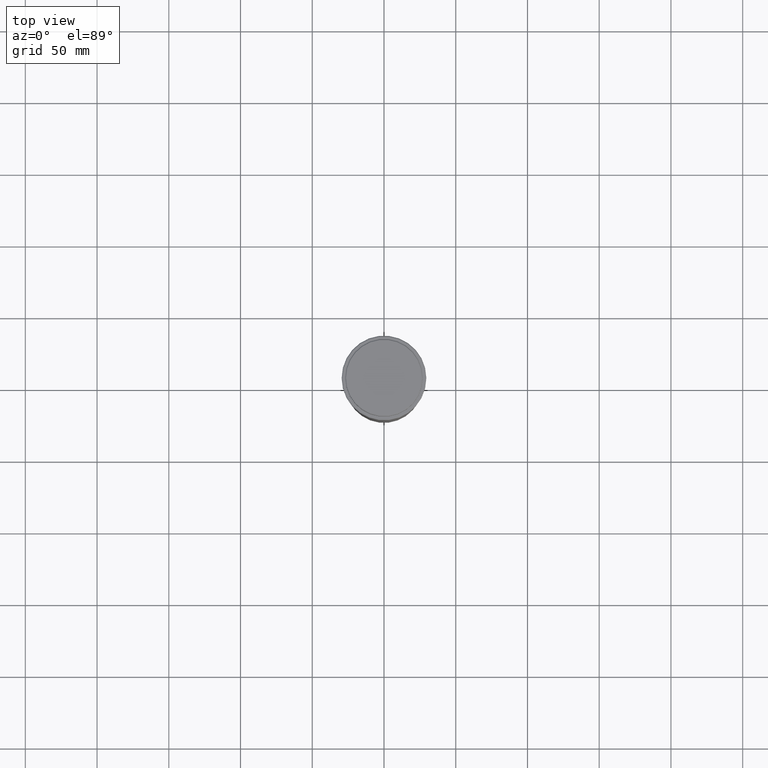
[diagram: clean part render]
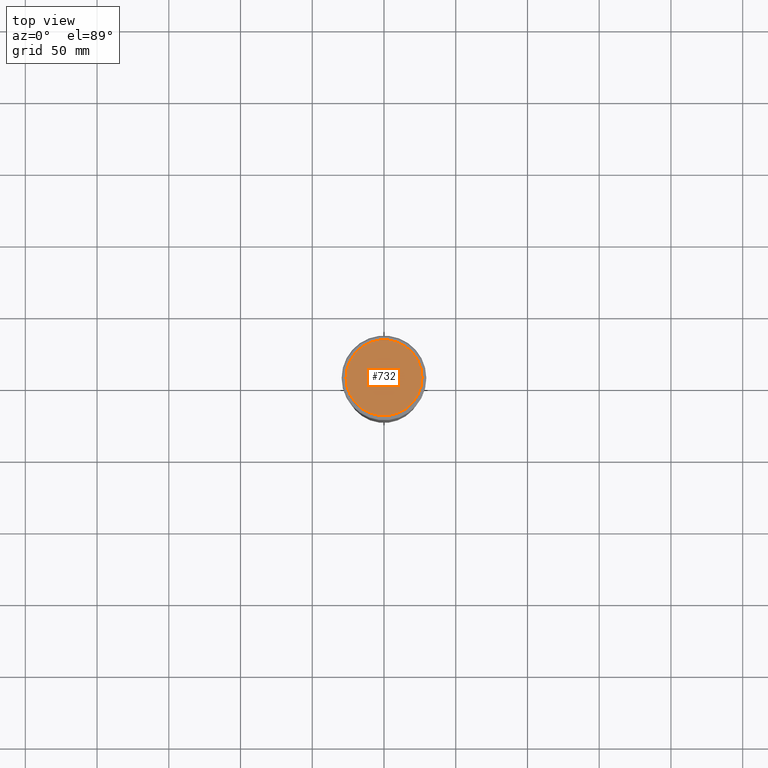
[diagram: same view with one face highlighted and labeled with its STEP entity id]
A machine part, top view. The second image highlights one B-rep face of the part: STEP entity #732.
In plain terms, the highlighted planar face has unit normal (0, -0, 1).
Its self-contained STEP definition (entity closure, byte-faithful):
#38 = EDGE_CURVE ( 'NONE', #976, #196, #653, .T. ) ;
#88 = ORIENTED_EDGE ( 'NONE', *, *, #790, .T. ) ;
#111 = CARTESIAN_POINT ( 'NONE',  ( 0.000000000000000000, 0.000000000000000000, 0.000000000000000000 ) ) ;
#136 = CARTESIAN_POINT ( 'NONE',  ( -26.50000000000002487, 0.000000000000000000, 0.000000000000000000 ) ) ;
#192 = AXIS2_PLACEMENT_3D ( 'NONE', #111, #1065, #728 ) ;
#196 = VERTEX_POINT ( 'NONE', #136 ) ;
#315 = DIRECTION ( 'NONE',  ( 1.000000000000000000, 0.000000000000000000, 0.000000000000000000 ) ) ;
#334 = PLANE ( 'NONE',  #192 ) ;
#372 = DIRECTION ( 'NONE',  ( -0.000000000000000000, -0.000000000000000000, 1.000000000000000000 ) ) ;
#514 = CARTESIAN_POINT ( 'NONE',  ( 26.50000000000002487, 3.275930187719171524E-15, 0.000000000000000000 ) ) ;
#622 = CARTESIAN_POINT ( 'NONE',  ( 0.000000000000000000, 0.000000000000000000, 0.000000000000000000 ) ) ;
#643 = FACE_OUTER_BOUND ( 'NONE', #1386, .T. ) ;
#653 = CIRCLE ( 'NONE', #1011, 26.50000000000002487 ) ;
#728 = DIRECTION ( 'NONE',  ( 1.000000000000000000, 0.000000000000000000, 0.000000000000000000 ) ) ;
#732 = ADVANCED_FACE ( 'NONE', ( #643 ), #334, .T. ) ;
#790 = EDGE_CURVE ( 'NONE', #196, #976, #1272, .T. ) ;
#976 = VERTEX_POINT ( 'NONE', #514 ) ;
#1011 = AXIS2_PLACEMENT_3D ( 'NONE', #1082, #372, #1366 ) ;
#1015 = AXIS2_PLACEMENT_3D ( 'NONE', #622, #1414, #315 ) ;
#1025 = ORIENTED_EDGE ( 'NONE', *, *, #38, .T. ) ;
#1065 = DIRECTION ( 'NONE',  ( 0.000000000000000000, -0.000000000000000000, 1.000000000000000000 ) ) ;
#1082 = CARTESIAN_POINT ( 'NONE',  ( 0.000000000000000000, 0.000000000000000000, 0.000000000000000000 ) ) ;
#1272 = CIRCLE ( 'NONE', #1015, 26.50000000000002487 ) ;
#1366 = DIRECTION ( 'NONE',  ( 1.000000000000000000, 0.000000000000000000, 0.000000000000000000 ) ) ;
#1386 = EDGE_LOOP ( 'NONE', ( #88, #1025 ) ) ;
#1414 = DIRECTION ( 'NONE',  ( -0.000000000000000000, -0.000000000000000000, 1.000000000000000000 ) ) ;